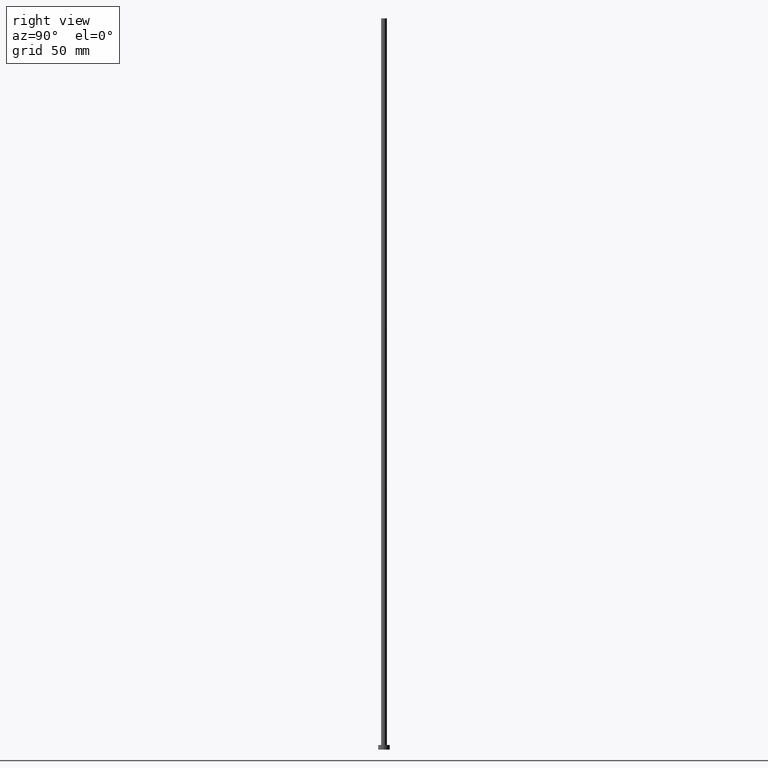
[diagram: clean part render]
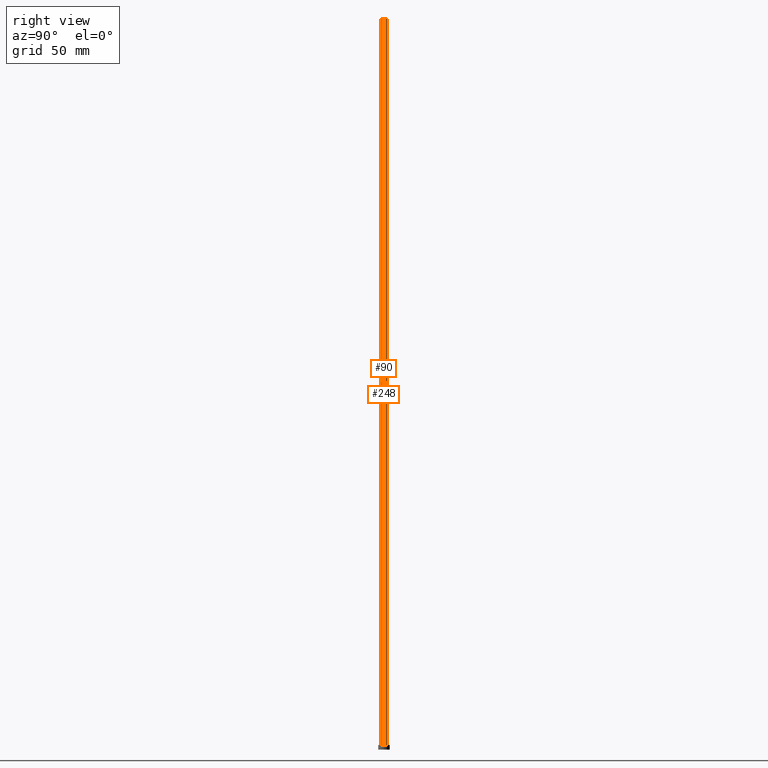
[diagram: same view with one multi-face feature highlighted, each face labeled with its STEP entity id]
A machine part, right view. The highlighted faces form ONE feature: a constant-radius fillet chain: 2 tangent blend faces with common blend radius 1.25 mm. The faces share edges in the B-rep.
Their STEP definitions:
[1] entity #248 (Cylinder):
#13 = VERTEX_POINT ( 'NONE', #27 ) ;
#17 = LINE ( 'NONE', #38, #226 ) ;
#20 = EDGE_CURVE ( 'NONE', #94, #13, #82, .T. ) ;
#23 = DIRECTION ( 'NONE',  ( 1.000000000000000000, 0.000000000000000000, 0.000000000000000000 ) ) ;
#27 = CARTESIAN_POINT ( 'NONE',  ( -1.250000000000000000, 0.000000000000000000, 2.000000000000000000 ) ) ;
#38 = CARTESIAN_POINT ( 'NONE',  ( 1.250000000000000000, 1.530808498934191571E-16, 315.0000000000000000 ) ) ;
#42 = DIRECTION ( 'NONE',  ( 1.000000000000000000, 0.000000000000000000, 0.000000000000000000 ) ) ;
#53 = VERTEX_POINT ( 'NONE', #144 ) ;
#56 = FACE_OUTER_BOUND ( 'NONE', #125, .T. ) ;
#61 = CARTESIAN_POINT ( 'NONE',  ( 0.000000000000000000, 0.000000000000000000, 315.0000000000000000 ) ) ;
#67 = DIRECTION ( 'NONE',  ( 0.000000000000000000, 0.000000000000000000, 1.000000000000000000 ) ) ;
#72 = ORIENTED_EDGE ( 'NONE', *, *, #20, .T. ) ;
#77 = CIRCLE ( 'NONE', #213, 1.250000000000000000 ) ;
#82 = CIRCLE ( 'NONE', #238, 1.250000000000000000 ) ;
#94 = VERTEX_POINT ( 'NONE', #183 ) ;
#96 = ORIENTED_EDGE ( 'NONE', *, *, #108, .T. ) ;
#108 = EDGE_CURVE ( 'NONE', #53, #94, #17, .T. ) ;
#109 = ORIENTED_EDGE ( 'NONE', *, *, #130, .F. ) ;
#111 = ORIENTED_EDGE ( 'NONE', *, *, #171, .F. ) ;
#114 = DIRECTION ( 'NONE',  ( 0.000000000000000000, 0.000000000000000000, 1.000000000000000000 ) ) ;
#123 = CARTESIAN_POINT ( 'NONE',  ( 0.000000000000000000, 0.000000000000000000, 2.000000000000000000 ) ) ;
#125 = EDGE_LOOP ( 'NONE', ( #109, #96, #72, #111 ) ) ;
#129 = DIRECTION ( 'NONE',  ( -0.000000000000000000, -0.000000000000000000, -1.000000000000000000 ) ) ;
#130 = EDGE_CURVE ( 'NONE', #53, #192, #77, .T. ) ;
#134 = LINE ( 'NONE', #177, #145 ) ;
#144 = CARTESIAN_POINT ( 'NONE',  ( 1.250000000000000000, 1.530808498934191571E-16, 315.0000000000000000 ) ) ;
#145 = VECTOR ( 'NONE', #129, 1000.000000000000000 ) ;
#171 = EDGE_CURVE ( 'NONE', #192, #13, #134, .T. ) ;
#175 = CYLINDRICAL_SURFACE ( 'NONE', #194, 1.250000000000000000 ) ;
#177 = CARTESIAN_POINT ( 'NONE',  ( -1.250000000000000000, 0.000000000000000000, 315.0000000000000000 ) ) ;
#179 = DIRECTION ( 'NONE',  ( -0.000000000000000000, -0.000000000000000000, -1.000000000000000000 ) ) ;
#183 = CARTESIAN_POINT ( 'NONE',  ( 1.250000000000000000, 1.530808498934191571E-16, 2.000000000000000000 ) ) ;
#192 = VERTEX_POINT ( 'NONE', #195 ) ;
#194 = AXIS2_PLACEMENT_3D ( 'NONE', #61, #179, #254 ) ;
#195 = CARTESIAN_POINT ( 'NONE',  ( -1.250000000000000000, 0.000000000000000000, 315.0000000000000000 ) ) ;
#196 = DIRECTION ( 'NONE',  ( -0.000000000000000000, -0.000000000000000000, -1.000000000000000000 ) ) ;
#210 = CARTESIAN_POINT ( 'NONE',  ( 0.000000000000000000, 0.000000000000000000, 315.0000000000000000 ) ) ;
#213 = AXIS2_PLACEMENT_3D ( 'NONE', #210, #114, #42 ) ;
#226 = VECTOR ( 'NONE', #196, 1000.000000000000000 ) ;
#238 = AXIS2_PLACEMENT_3D ( 'NONE', #123, #67, #23 ) ;
#248 = ADVANCED_FACE ( 'NONE', ( #56 ), #175, .T. ) ;
#254 = DIRECTION ( 'NONE',  ( -1.000000000000000000, 0.000000000000000000, 0.000000000000000000 ) ) ;
[2] entity #90 (Cylinder):
#3 = CIRCLE ( 'NONE', #14, 1.250000000000000000 ) ;
#13 = VERTEX_POINT ( 'NONE', #27 ) ;
#14 = AXIS2_PLACEMENT_3D ( 'NONE', #217, #198, #166 ) ;
#17 = LINE ( 'NONE', #38, #226 ) ;
#21 = CIRCLE ( 'NONE', #93, 1.250000000000000000 ) ;
#27 = CARTESIAN_POINT ( 'NONE',  ( -1.250000000000000000, 0.000000000000000000, 2.000000000000000000 ) ) ;
#38 = CARTESIAN_POINT ( 'NONE',  ( 1.250000000000000000, 1.530808498934191571E-16, 315.0000000000000000 ) ) ;
#45 = CARTESIAN_POINT ( 'NONE',  ( 0.000000000000000000, 0.000000000000000000, 315.0000000000000000 ) ) ;
#49 = CYLINDRICAL_SURFACE ( 'NONE', #178, 1.250000000000000000 ) ;
#51 = ORIENTED_EDGE ( 'NONE', *, *, #121, .F. ) ;
#53 = VERTEX_POINT ( 'NONE', #144 ) ;
#63 = EDGE_CURVE ( 'NONE', #13, #94, #3, .T. ) ;
#73 = ORIENTED_EDGE ( 'NONE', *, *, #108, .F. ) ;
#90 = ADVANCED_FACE ( 'NONE', ( #151 ), #49, .T. ) ;
#93 = AXIS2_PLACEMENT_3D ( 'NONE', #251, #230, #160 ) ;
#94 = VERTEX_POINT ( 'NONE', #183 ) ;
#108 = EDGE_CURVE ( 'NONE', #53, #94, #17, .T. ) ;
#120 = EDGE_LOOP ( 'NONE', ( #73, #51, #223, #224 ) ) ;
#121 = EDGE_CURVE ( 'NONE', #192, #53, #21, .T. ) ;
#129 = DIRECTION ( 'NONE',  ( -0.000000000000000000, -0.000000000000000000, -1.000000000000000000 ) ) ;
#134 = LINE ( 'NONE', #177, #145 ) ;
#144 = CARTESIAN_POINT ( 'NONE',  ( 1.250000000000000000, 1.530808498934191571E-16, 315.0000000000000000 ) ) ;
#145 = VECTOR ( 'NONE', #129, 1000.000000000000000 ) ;
#151 = FACE_OUTER_BOUND ( 'NONE', #120, .T. ) ;
#160 = DIRECTION ( 'NONE',  ( 1.000000000000000000, 0.000000000000000000, 0.000000000000000000 ) ) ;
#166 = DIRECTION ( 'NONE',  ( 1.000000000000000000, 0.000000000000000000, 0.000000000000000000 ) ) ;
#171 = EDGE_CURVE ( 'NONE', #192, #13, #134, .T. ) ;
#177 = CARTESIAN_POINT ( 'NONE',  ( -1.250000000000000000, 0.000000000000000000, 315.0000000000000000 ) ) ;
#178 = AXIS2_PLACEMENT_3D ( 'NONE', #45, #241, #203 ) ;
#183 = CARTESIAN_POINT ( 'NONE',  ( 1.250000000000000000, 1.530808498934191571E-16, 2.000000000000000000 ) ) ;
#192 = VERTEX_POINT ( 'NONE', #195 ) ;
#195 = CARTESIAN_POINT ( 'NONE',  ( -1.250000000000000000, 0.000000000000000000, 315.0000000000000000 ) ) ;
#196 = DIRECTION ( 'NONE',  ( -0.000000000000000000, -0.000000000000000000, -1.000000000000000000 ) ) ;
#198 = DIRECTION ( 'NONE',  ( 0.000000000000000000, 0.000000000000000000, 1.000000000000000000 ) ) ;
#203 = DIRECTION ( 'NONE',  ( -1.000000000000000000, 0.000000000000000000, 0.000000000000000000 ) ) ;
#217 = CARTESIAN_POINT ( 'NONE',  ( 0.000000000000000000, 0.000000000000000000, 2.000000000000000000 ) ) ;
#223 = ORIENTED_EDGE ( 'NONE', *, *, #171, .T. ) ;
#224 = ORIENTED_EDGE ( 'NONE', *, *, #63, .T. ) ;
#226 = VECTOR ( 'NONE', #196, 1000.000000000000000 ) ;
#230 = DIRECTION ( 'NONE',  ( 0.000000000000000000, 0.000000000000000000, 1.000000000000000000 ) ) ;
#241 = DIRECTION ( 'NONE',  ( -0.000000000000000000, -0.000000000000000000, -1.000000000000000000 ) ) ;
#251 = CARTESIAN_POINT ( 'NONE',  ( 0.000000000000000000, 0.000000000000000000, 315.0000000000000000 ) ) ;